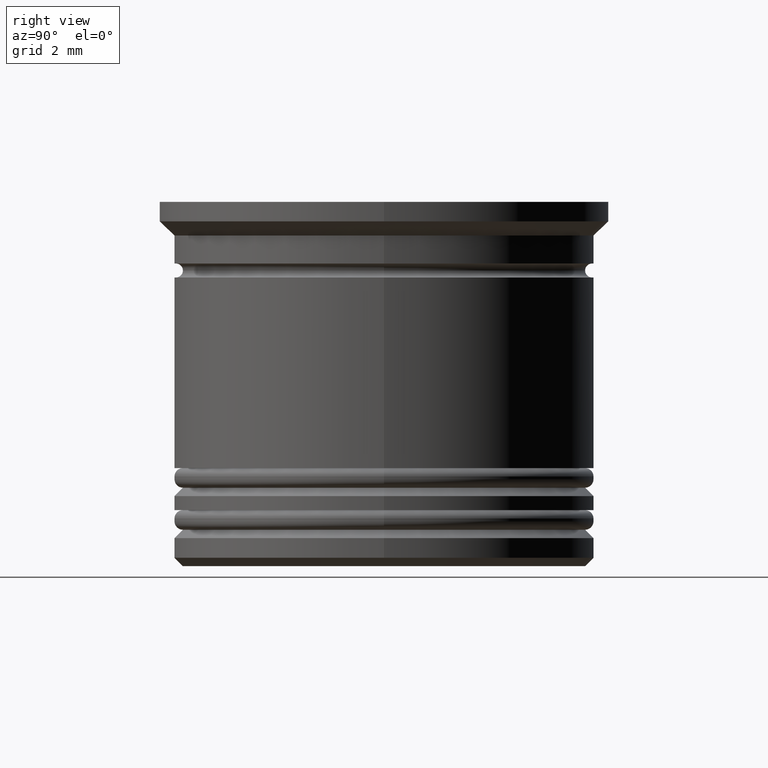
[diagram: clean part render]
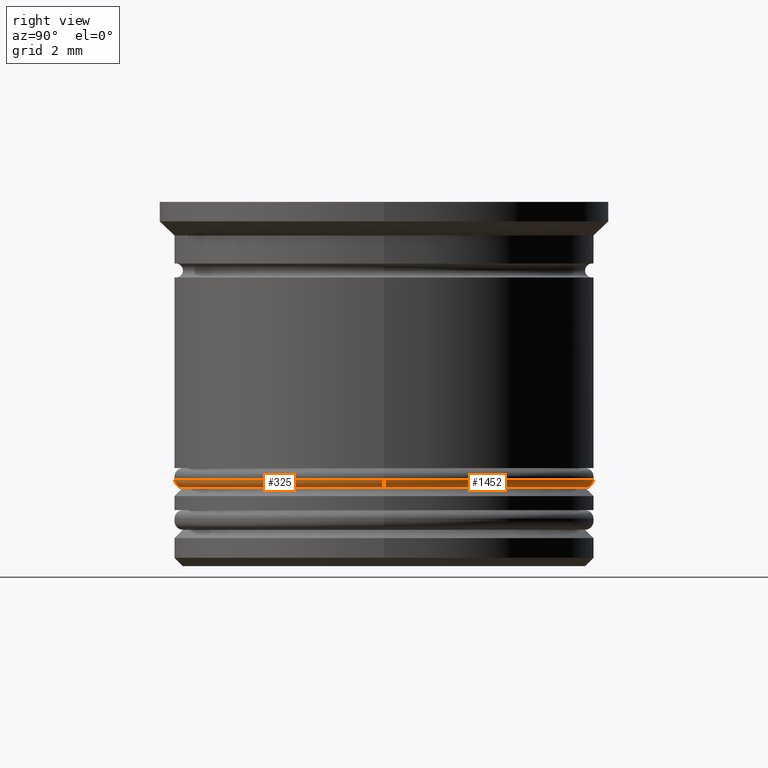
[diagram: same view with one multi-face feature highlighted, each face labeled with its STEP entity id]
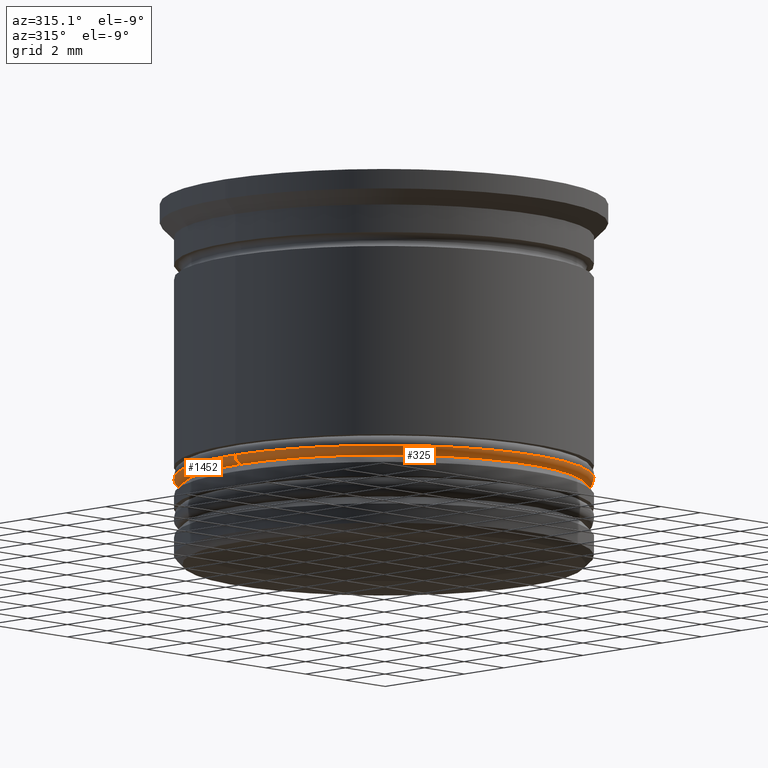
[diagram: same view with one multi-face feature highlighted, each face labeled with its STEP entity id]
A machine part, right view. The highlighted faces form ONE feature: a constant-radius fillet chain: 2 tangent blend faces with common blend radius 0.3 mm. The faces share edges in the B-rep.
A second angle (auxiliary view) of the same feature is appended — it is thin or edge-on in the first view.
Their STEP definitions:
[1] entity #1452 (Torus):
#104 = DIRECTION ( 'NONE',  ( 0.000000000000000000, -1.000000000000000000, 0.000000000000000000 ) ) ;
#110 = CARTESIAN_POINT ( 'NONE',  ( 7.200000000000001954, 0.000000000000000000, -10.20000000000000639 ) ) ;
#117 = CARTESIAN_POINT ( 'NONE',  ( 7.200000000000001954, 0.000000000000000000, -9.900000000000005684 ) ) ;
#159 = CARTESIAN_POINT ( 'NONE',  ( 7.500000000000001776, 0.000000000000000000, -9.900000000000005684 ) ) ;
#249 = CIRCLE ( 'NONE', #1080, 7.500000000000001776 ) ;
#320 = ORIENTED_EDGE ( 'NONE', *, *, #1602, .F. ) ;
#418 = ORIENTED_EDGE ( 'NONE', *, *, #1262, .F. ) ;
#480 = CIRCLE ( 'NONE', #1874, 0.2999999999999999334 ) ;
#497 = VERTEX_POINT ( 'NONE', #110 ) ;
#523 = DIRECTION ( 'NONE',  ( 1.000000000000000000, 0.000000000000000000, 0.000000000000000000 ) ) ;
#550 = CARTESIAN_POINT ( 'NONE',  ( 0.000000000000000000, 0.000000000000000000, -10.20000000000000639 ) ) ;
#585 = ORIENTED_EDGE ( 'NONE', *, *, #1868, .F. ) ;
#596 = DIRECTION ( 'NONE',  ( 0.000000000000000000, 0.000000000000000000, -1.000000000000000000 ) ) ;
#604 = DIRECTION ( 'NONE',  ( 1.000000000000000000, 0.000000000000000000, 0.000000000000000000 ) ) ;
#608 = CIRCLE ( 'NONE', #1560, 0.2999999999999999334 ) ;
#639 = DIRECTION ( 'NONE',  ( 0.000000000000000000, 0.000000000000000000, 1.000000000000000000 ) ) ;
#704 = CIRCLE ( 'NONE', #987, 7.200000000000001954 ) ;
#801 = CARTESIAN_POINT ( 'NONE',  ( -7.200000000000001954, 9.001153973733047589E-16, -10.20000000000000639 ) ) ;
#824 = CARTESIAN_POINT ( 'NONE',  ( -7.500000000000001776, 9.184850993605149917E-16, -9.900000000000005684 ) ) ;
#911 = DIRECTION ( 'NONE',  ( 0.000000000000000000, 0.000000000000000000, 1.000000000000000000 ) ) ;
#940 = VERTEX_POINT ( 'NONE', #801 ) ;
#987 = AXIS2_PLACEMENT_3D ( 'NONE', #550, #1703, #523 ) ;
#1068 = DIRECTION ( 'NONE',  ( -1.000000000000000000, 1.224646799147353207E-16, 0.000000000000000000 ) ) ;
#1080 = AXIS2_PLACEMENT_3D ( 'NONE', #1534, #911, #604 ) ;
#1208 = CARTESIAN_POINT ( 'NONE',  ( 0.000000000000000000, 0.000000000000000000, -9.900000000000005684 ) ) ;
#1262 = EDGE_CURVE ( 'NONE', #497, #1423, #480, .T. ) ;
#1379 = EDGE_LOOP ( 'NONE', ( #320, #1489, #585, #418 ) ) ;
#1393 = FACE_OUTER_BOUND ( 'NONE', #1379, .T. ) ;
#1423 = VERTEX_POINT ( 'NONE', #159 ) ;
#1452 = ADVANCED_FACE ( 'NONE', ( #1393 ), #1844, .T. ) ;
#1488 = DIRECTION ( 'NONE',  ( 1.224646799147353207E-16, 1.000000000000000000, -0.000000000000000000 ) ) ;
#1489 = ORIENTED_EDGE ( 'NONE', *, *, #1789, .T. ) ;
#1523 = DIRECTION ( 'NONE',  ( 1.000000000000000000, 0.000000000000000000, 0.000000000000000000 ) ) ;
#1534 = CARTESIAN_POINT ( 'NONE',  ( 0.000000000000000000, 0.000000000000000000, -9.900000000000005684 ) ) ;
#1560 = AXIS2_PLACEMENT_3D ( 'NONE', #1785, #1488, #1068 ) ;
#1602 = EDGE_CURVE ( 'NONE', #940, #497, #704, .T. ) ;
#1609 = VERTEX_POINT ( 'NONE', #824 ) ;
#1703 = DIRECTION ( 'NONE',  ( -0.000000000000000000, -0.000000000000000000, -1.000000000000000000 ) ) ;
#1785 = CARTESIAN_POINT ( 'NONE',  ( -7.200000000000001954, 8.817456953860946247E-16, -9.900000000000005684 ) ) ;
#1789 = EDGE_CURVE ( 'NONE', #940, #1609, #608, .T. ) ;
#1844 = TOROIDAL_SURFACE ( 'NONE', #1908, 7.200000000000001954, 0.2999999999999999889 ) ;
#1868 = EDGE_CURVE ( 'NONE', #1423, #1609, #249, .T. ) ;
#1874 = AXIS2_PLACEMENT_3D ( 'NONE', #117, #104, #596 ) ;
#1908 = AXIS2_PLACEMENT_3D ( 'NONE', #1208, #639, #1523 ) ;
[2] entity #325 (Torus):
#104 = DIRECTION ( 'NONE',  ( 0.000000000000000000, -1.000000000000000000, 0.000000000000000000 ) ) ;
#110 = CARTESIAN_POINT ( 'NONE',  ( 7.200000000000001954, 0.000000000000000000, -10.20000000000000639 ) ) ;
#112 = EDGE_LOOP ( 'NONE', ( #636, #1438, #1636, #744 ) ) ;
#117 = CARTESIAN_POINT ( 'NONE',  ( 7.200000000000001954, 0.000000000000000000, -9.900000000000005684 ) ) ;
#128 = AXIS2_PLACEMENT_3D ( 'NONE', #1562, #1404, #637 ) ;
#159 = CARTESIAN_POINT ( 'NONE',  ( 7.500000000000001776, 0.000000000000000000, -9.900000000000005684 ) ) ;
#325 = ADVANCED_FACE ( 'NONE', ( #1104 ), #1818, .T. ) ;
#480 = CIRCLE ( 'NONE', #1874, 0.2999999999999999334 ) ;
#497 = VERTEX_POINT ( 'NONE', #110 ) ;
#596 = DIRECTION ( 'NONE',  ( 0.000000000000000000, 0.000000000000000000, -1.000000000000000000 ) ) ;
#608 = CIRCLE ( 'NONE', #1560, 0.2999999999999999334 ) ;
#636 = ORIENTED_EDGE ( 'NONE', *, *, #1789, .F. ) ;
#637 = DIRECTION ( 'NONE',  ( 1.000000000000000000, 0.000000000000000000, 0.000000000000000000 ) ) ;
#744 = ORIENTED_EDGE ( 'NONE', *, *, #1755, .F. ) ;
#750 = DIRECTION ( 'NONE',  ( 0.000000000000000000, 0.000000000000000000, 1.000000000000000000 ) ) ;
#801 = CARTESIAN_POINT ( 'NONE',  ( -7.200000000000001954, 9.001153973733047589E-16, -10.20000000000000639 ) ) ;
#824 = CARTESIAN_POINT ( 'NONE',  ( -7.500000000000001776, 9.184850993605149917E-16, -9.900000000000005684 ) ) ;
#940 = VERTEX_POINT ( 'NONE', #801 ) ;
#1037 = CARTESIAN_POINT ( 'NONE',  ( 0.000000000000000000, 0.000000000000000000, -9.900000000000005684 ) ) ;
#1068 = DIRECTION ( 'NONE',  ( -1.000000000000000000, 1.224646799147353207E-16, 0.000000000000000000 ) ) ;
#1104 = FACE_OUTER_BOUND ( 'NONE', #112, .T. ) ;
#1136 = CIRCLE ( 'NONE', #1588, 7.200000000000001954 ) ;
#1162 = DIRECTION ( 'NONE',  ( 1.000000000000000000, 0.000000000000000000, 0.000000000000000000 ) ) ;
#1262 = EDGE_CURVE ( 'NONE', #497, #1423, #480, .T. ) ;
#1404 = DIRECTION ( 'NONE',  ( 0.000000000000000000, 0.000000000000000000, 1.000000000000000000 ) ) ;
#1423 = VERTEX_POINT ( 'NONE', #159 ) ;
#1438 = ORIENTED_EDGE ( 'NONE', *, *, #1594, .F. ) ;
#1442 = DIRECTION ( 'NONE',  ( -0.000000000000000000, -0.000000000000000000, -1.000000000000000000 ) ) ;
#1488 = DIRECTION ( 'NONE',  ( 1.224646799147353207E-16, 1.000000000000000000, -0.000000000000000000 ) ) ;
#1560 = AXIS2_PLACEMENT_3D ( 'NONE', #1785, #1488, #1068 ) ;
#1562 = CARTESIAN_POINT ( 'NONE',  ( 0.000000000000000000, 0.000000000000000000, -9.900000000000005684 ) ) ;
#1588 = AXIS2_PLACEMENT_3D ( 'NONE', #1731, #1442, #1909 ) ;
#1594 = EDGE_CURVE ( 'NONE', #497, #940, #1136, .T. ) ;
#1609 = VERTEX_POINT ( 'NONE', #824 ) ;
#1616 = CIRCLE ( 'NONE', #1678, 7.500000000000001776 ) ;
#1636 = ORIENTED_EDGE ( 'NONE', *, *, #1262, .T. ) ;
#1678 = AXIS2_PLACEMENT_3D ( 'NONE', #1037, #750, #1162 ) ;
#1731 = CARTESIAN_POINT ( 'NONE',  ( 0.000000000000000000, 0.000000000000000000, -10.20000000000000639 ) ) ;
#1755 = EDGE_CURVE ( 'NONE', #1609, #1423, #1616, .T. ) ;
#1785 = CARTESIAN_POINT ( 'NONE',  ( -7.200000000000001954, 8.817456953860946247E-16, -9.900000000000005684 ) ) ;
#1789 = EDGE_CURVE ( 'NONE', #940, #1609, #608, .T. ) ;
#1818 = TOROIDAL_SURFACE ( 'NONE', #128, 7.200000000000001954, 0.2999999999999999889 ) ;
#1874 = AXIS2_PLACEMENT_3D ( 'NONE', #117, #104, #596 ) ;
#1909 = DIRECTION ( 'NONE',  ( 1.000000000000000000, 0.000000000000000000, 0.000000000000000000 ) ) ;